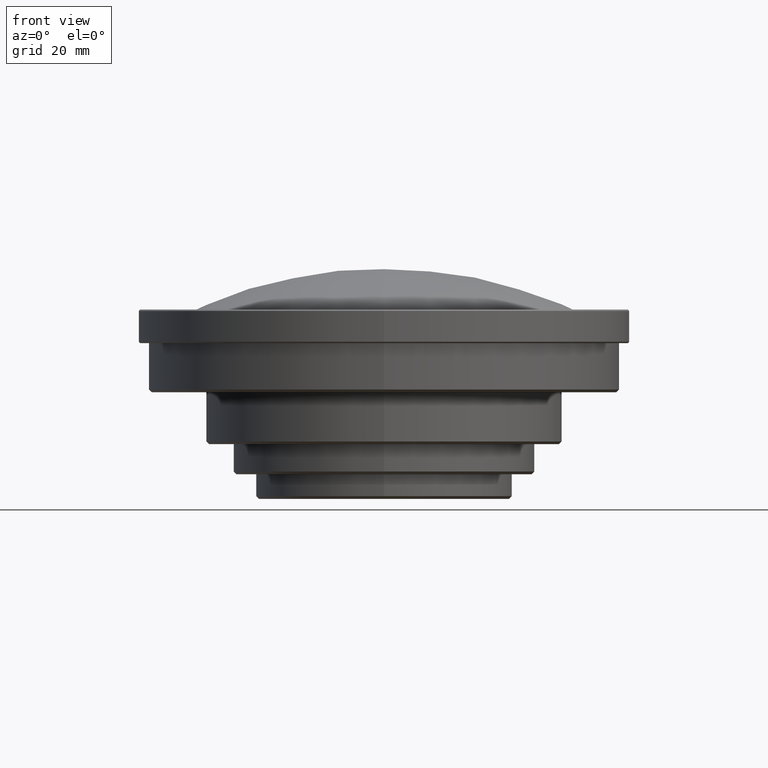
[diagram: clean part render]
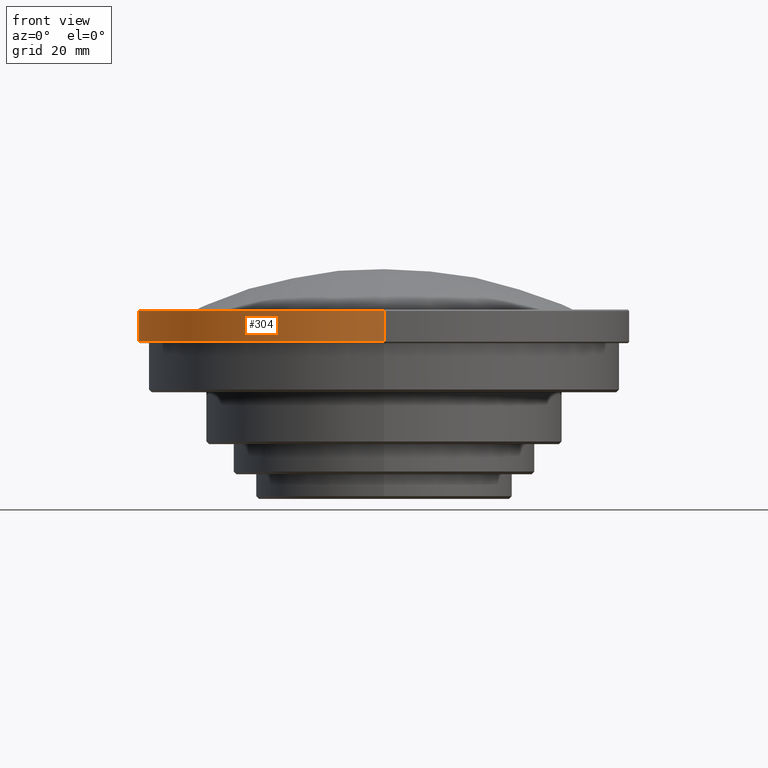
[diagram: same view with one face highlighted and labeled with its STEP entity id]
A machine part, front view. The second image highlights one B-rep face of the part: STEP entity #304.
In plain terms, the highlighted cylindrical surface (partial cylindrical patch) has radius 90 mm, axis along (0, 0, -1).
Its self-contained STEP definition (entity closure, byte-faithful):
#16 = ORIENTED_EDGE ( 'NONE', *, *, #488, .F. ) ;
#30 = EDGE_CURVE ( 'NONE', #734, #1082, #338, .T. ) ;
#43 = DIRECTION ( 'NONE',  ( 0.000000000000000000, 0.000000000000000000, 1.000000000000000000 ) ) ;
#83 = CIRCLE ( 'NONE', #782, 90.00000000000000000 ) ;
#112 = CARTESIAN_POINT ( 'NONE',  ( 1.102182119232999878E-14, 90.00000000000000000, 63.67999999999999972 ) ) ;
#129 = DIRECTION ( 'NONE',  ( 0.000000000000000000, 0.000000000000000000, -1.000000000000000000 ) ) ;
#169 = CIRCLE ( 'NONE', #1073, 90.00000000000000000 ) ;
#215 = DIRECTION ( 'NONE',  ( 0.000000000000000000, 1.000000000000000000, 0.000000000000000000 ) ) ;
#222 = CARTESIAN_POINT ( 'NONE',  ( 0.000000000000000000, -1.122797425597999966E-14, 94.71599481863999870 ) ) ;
#292 = VERTEX_POINT ( 'NONE', #731 ) ;
#304 = ADVANCED_FACE ( 'NONE', ( #1077 ), #815, .T. ) ;
#321 = ORIENTED_EDGE ( 'NONE', *, *, #618, .F. ) ;
#338 = LINE ( 'NONE', #1025, #599 ) ;
#451 = CARTESIAN_POINT ( 'NONE',  ( -1.102182119232999878E-14, -90.00000000000000000, 74.99999506530998872 ) ) ;
#475 = DIRECTION ( 'NONE',  ( 0.000000000000000000, -1.000000000000000000, 0.000000000000000000 ) ) ;
#484 = CARTESIAN_POINT ( 'NONE',  ( -1.102182119232999878E-14, -90.00000000000000000, 63.67999999999999972 ) ) ;
#488 = EDGE_CURVE ( 'NONE', #880, #292, #979, .T. ) ;
#541 = DIRECTION ( 'NONE',  ( 0.000000000000000000, 0.000000000000000000, 1.000000000000000000 ) ) ;
#562 = DIRECTION ( 'NONE',  ( 0.000000000000000000, 1.000000000000000000, 0.000000000000000000 ) ) ;
#599 = VECTOR ( 'NONE', #688, 1000.000000000000000 ) ;
#608 = ORIENTED_EDGE ( 'NONE', *, *, #30, .T. ) ;
#618 = EDGE_CURVE ( 'NONE', #292, #1082, #169, .T. ) ;
#669 = AXIS2_PLACEMENT_3D ( 'NONE', #222, #129, #475 ) ;
#688 = DIRECTION ( 'NONE',  ( 0.000000000000000000, 0.000000000000000000, 1.000000000000000000 ) ) ;
#726 = EDGE_LOOP ( 'NONE', ( #910, #608, #321, #16 ) ) ;
#731 = CARTESIAN_POINT ( 'NONE',  ( 1.102182119232999878E-14, 90.00000000000000000, 74.99999506530998872 ) ) ;
#733 = CARTESIAN_POINT ( 'NONE',  ( 0.000000000000000000, -1.122797425597999966E-14, 74.99999506530998872 ) ) ;
#734 = VERTEX_POINT ( 'NONE', #484 ) ;
#782 = AXIS2_PLACEMENT_3D ( 'NONE', #989, #43, #215 ) ;
#815 = CYLINDRICAL_SURFACE ( 'NONE', #669, 90.00000000000000000 ) ;
#880 = VERTEX_POINT ( 'NONE', #971 ) ;
#910 = ORIENTED_EDGE ( 'NONE', *, *, #1058, .T. ) ;
#944 = VECTOR ( 'NONE', #541, 1000.000000000000000 ) ;
#971 = CARTESIAN_POINT ( 'NONE',  ( 1.102182119232999878E-14, 90.00000000000000000, 63.67999999999999972 ) ) ;
#979 = LINE ( 'NONE', #112, #944 ) ;
#989 = CARTESIAN_POINT ( 'NONE',  ( 0.000000000000000000, -1.122797425597999966E-14, 63.67999999999999972 ) ) ;
#1025 = CARTESIAN_POINT ( 'NONE',  ( -1.102182119232999878E-14, -90.00000000000000000, 63.67999999999999972 ) ) ;
#1058 = EDGE_CURVE ( 'NONE', #880, #734, #83, .T. ) ;
#1073 = AXIS2_PLACEMENT_3D ( 'NONE', #733, #1078, #562 ) ;
#1077 = FACE_OUTER_BOUND ( 'NONE', #726, .T. ) ;
#1078 = DIRECTION ( 'NONE',  ( 0.000000000000000000, 0.000000000000000000, 1.000000000000000000 ) ) ;
#1082 = VERTEX_POINT ( 'NONE', #451 ) ;